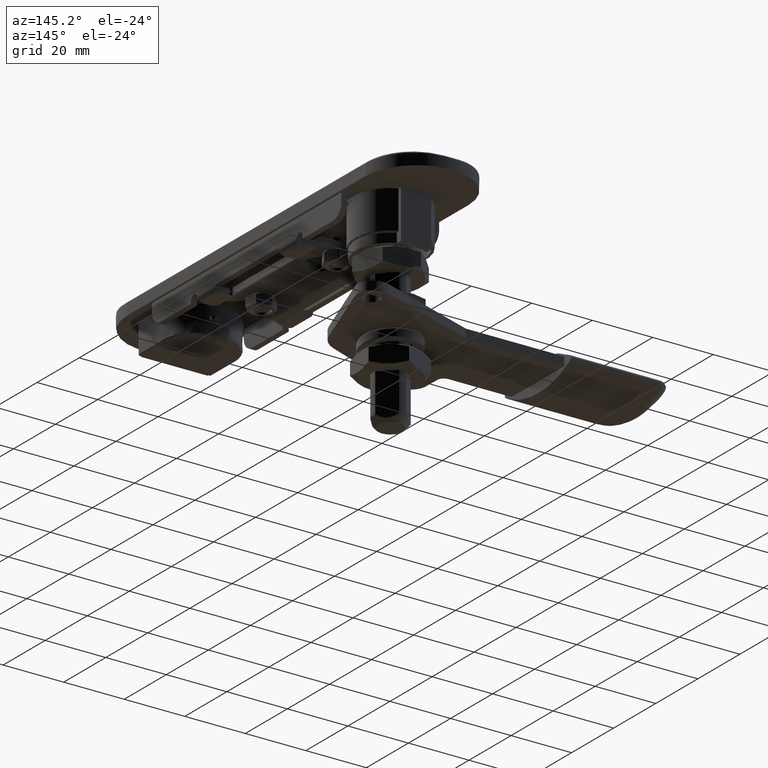
[diagram: clean part render]
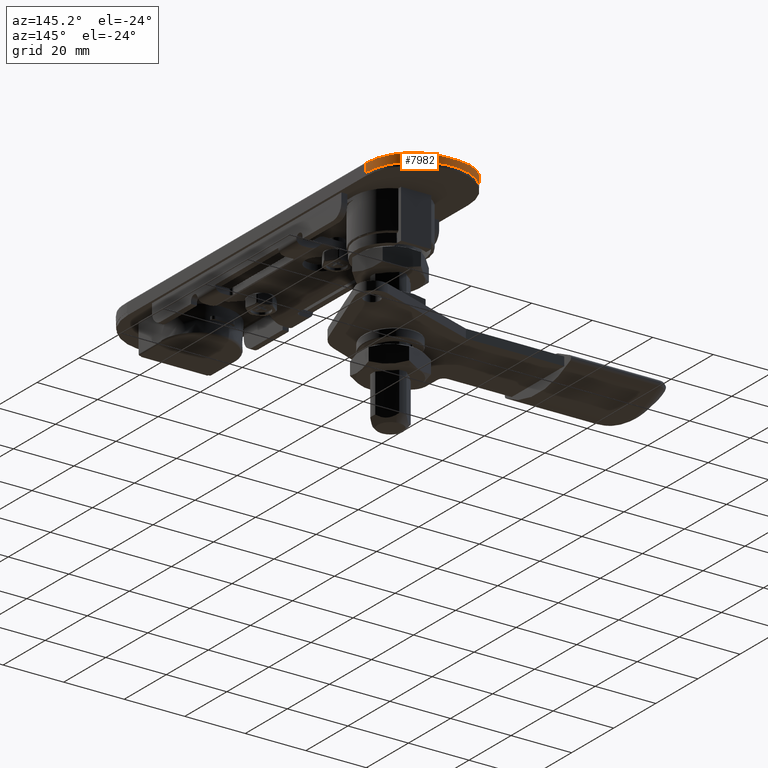
[diagram: same view with one face highlighted and labeled with its STEP entity id]
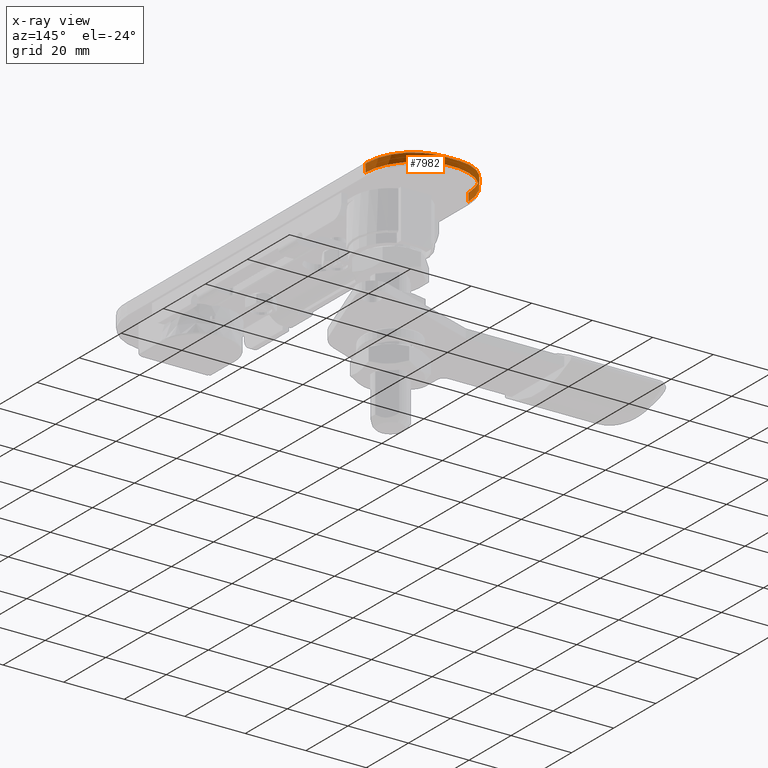
[diagram: x-ray of the same camera — body ghosted, the highlighted face saturated]
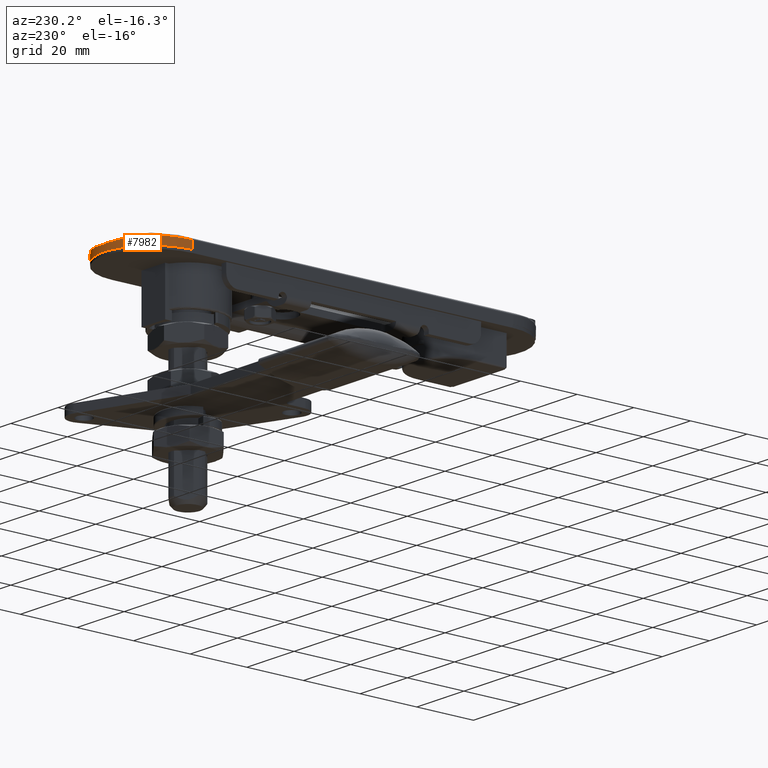
[diagram: same view with one face highlighted and labeled with its STEP entity id]
A machine part, auxiliary view. The second image highlights one B-rep face of the part: STEP entity #7982.
The next image is the same camera in x-ray: the body ghosted, the highlighted face saturated — about 0% of this face is hidden behind the body in this view.
A second angle (auxiliary view) of the same face is appended — the face is thin or edge-on in the first view.
In plain terms, the highlighted cylindrical surface (partial cylindrical patch) has radius 17 mm, axis along (0, 0, 1).
Its self-contained STEP definition (entity closure, byte-faithful):
#284=CYLINDRICAL_SURFACE('',#8509,17.);
#445=B_SPLINE_CURVE_WITH_KNOTS('',3,(#11934,#11935,#11936,#11937),
 .UNSPECIFIED.,.F.,.F.,(4,4),(-0.100076611545021,-9.01788158025764E-16),
 .UNSPECIFIED.);
#447=B_SPLINE_CURVE_WITH_KNOTS('',3,(#11975,#11976,#11977,#11978,#11979,
#11980),.UNSPECIFIED.,.F.,.F.,(4,1,1,4),(-2.24226266859589,-1.28129295348337,
-0.640646476741683,-8.31030233735599E-16),.UNSPECIFIED.);
#449=B_SPLINE_CURVE_WITH_KNOTS('',3,(#12010,#12011,#12012,#12013),
 .UNSPECIFIED.,.F.,.F.,(4,4),(-0.502447549557416,-4.30586264964132E-15),
 .UNSPECIFIED.);
#451=B_SPLINE_CURVE_WITH_KNOTS('',3,(#12051,#12052,#12053,#12054,#12055,
#12056),.UNSPECIFIED.,.F.,.F.,(4,1,1,4),(-2.24224858661324,-1.60160613329517,
-0.960963679977102,-1.30393595198205E-15),.UNSPECIFIED.);
#453=B_SPLINE_CURVE_WITH_KNOTS('',3,(#12086,#12087,#12088,#12089),
 .UNSPECIFIED.,.F.,.F.,(4,4),(-0.100076612241041,0.),.UNSPECIFIED.);
#707=CIRCLE('',#8510,17.);
#1095=FACE_OUTER_BOUND('',#1590,.T.);
#1590=EDGE_LOOP('',(#5470,#5471,#5472,#5473,#5474,#5475,#5476,#5477));
#2166=LINE('',#12180,#2776);
#2169=LINE('',#12186,#2779);
#2776=VECTOR('',#9475,2.69277599463048);
#2779=VECTOR('',#9480,2.69277599463051);
#3397=VERTEX_POINT('',#11907);
#3399=VERTEX_POINT('',#11932);
#3401=VERTEX_POINT('',#11973);
#3403=VERTEX_POINT('',#12008);
#3405=VERTEX_POINT('',#12049);
#3407=VERTEX_POINT('',#12084);
#3414=VERTEX_POINT('',#12179);
#3416=VERTEX_POINT('',#12185);
#4198=EDGE_CURVE('',#3399,#3397,#445,.T.);
#4201=EDGE_CURVE('',#3401,#3399,#447,.T.);
#4204=EDGE_CURVE('',#3403,#3401,#449,.T.);
#4207=EDGE_CURVE('',#3405,#3403,#451,.T.);
#4210=EDGE_CURVE('',#3407,#3405,#453,.T.);
#4221=EDGE_CURVE('',#3414,#3397,#2166,.T.);
#4224=EDGE_CURVE('',#3416,#3407,#2169,.T.);
#4225=EDGE_CURVE('',#3416,#3414,#707,.T.);
#5470=ORIENTED_EDGE('',*,*,#4198,.F.);
#5471=ORIENTED_EDGE('',*,*,#4201,.F.);
#5472=ORIENTED_EDGE('',*,*,#4204,.F.);
#5473=ORIENTED_EDGE('',*,*,#4207,.F.);
#5474=ORIENTED_EDGE('',*,*,#4210,.F.);
#5475=ORIENTED_EDGE('',*,*,#4224,.F.);
#5476=ORIENTED_EDGE('',*,*,#4225,.T.);
#5477=ORIENTED_EDGE('',*,*,#4221,.T.);
#7982=ADVANCED_FACE('',(#1095),#284,.T.);
#8509=AXIS2_PLACEMENT_3D('',#12184,#9478,#9479);
#8510=AXIS2_PLACEMENT_3D('',#12187,#9481,#9482);
#9475=DIRECTION('',(0.,0.,1.));
#9478=DIRECTION('center_axis',(0.,0.,1.));
#9479=DIRECTION('ref_axis',(1.,5.2245789394125E-16,0.));
#9480=DIRECTION('',(0.,0.,1.));
#9481=DIRECTION('center_axis',(0.,0.,1.));
#9482=DIRECTION('ref_axis',(1.,5.2245789394125E-16,0.));
#11907=CARTESIAN_POINT('',(-17.,56.65,2.69277599463048));
#11932=CARTESIAN_POINT('',(-16.9687499735764,57.680303030303,2.7079325618715));
#11934=CARTESIAN_POINT('Ctrl Pts',(-16.9687499735764,57.680303030303,2.7079325618715));
#11935=CARTESIAN_POINT('Ctrl Pts',(-16.989570602006,57.3373941697795,2.69784803573505));
#11936=CARTESIAN_POINT('Ctrl Pts',(-17.,56.993697453791,2.69277599463048));
#11937=CARTESIAN_POINT('Ctrl Pts',(-17.,56.65,2.69277599463048));
#11973=CARTESIAN_POINT('',(-2.57575757575757,73.4537338978849,2.29713095015357));
#11975=CARTESIAN_POINT('Ctrl Pts',(-2.57575757575757,73.4537338978849,2.29713095015357));
#11976=CARTESIAN_POINT('Ctrl Pts',(-5.82811537646215,72.9551967694618,2.54574133772796));
#11977=CARTESIAN_POINT('Ctrl Pts',(-11.001977333213,70.5002915013601,2.81815959750421));
#11978=CARTESIAN_POINT('Ctrl Pts',(-15.7047706749182,64.2106450952923,2.86181879245691));
#11979=CARTESIAN_POINT('Ctrl Pts',(-16.8354654624298,59.8754548239772,2.77248926537282));
#11980=CARTESIAN_POINT('Ctrl Pts',(-16.9687499735764,57.680303030303,2.7079325618715));
#12008=CARTESIAN_POINT('',(2.57575757575762,73.4537338978849,2.29713095015358));
#12010=CARTESIAN_POINT('Ctrl Pts',(2.57575757575762,73.4537338978849,2.29713095015358));
#12011=CARTESIAN_POINT('Ctrl Pts',(0.875246954508127,73.71439638766,2.16714383602621));
#12012=CARTESIAN_POINT('Ctrl Pts',(-0.875246954508073,73.71439638766,2.16714383602621));
#12013=CARTESIAN_POINT('Ctrl Pts',(-2.57575757575757,73.4537338978849,2.29713095015357));
#12049=CARTESIAN_POINT('',(16.9687499735764,57.680303030303,2.70793256187153));
#12051=CARTESIAN_POINT('Ctrl Pts',(16.9687499735764,57.680303030303,2.70793256187153));
#12052=CARTESIAN_POINT('Ctrl Pts',(16.8354662994905,59.8754410378629,2.77248885994025));
#12053=CARTESIAN_POINT('Ctrl Pts',(15.704836362388,64.2104187894592,2.86181345978372));
#12054=CARTESIAN_POINT('Ctrl Pts',(11.0022243987517,70.5001337525877,2.81816988923876));
#12055=CARTESIAN_POINT('Ctrl Pts',(5.82809495082399,72.9551999004023,2.5457397763912));
#12056=CARTESIAN_POINT('Ctrl Pts',(2.57575757575761,73.4537338978849,2.29713095015358));
#12084=CARTESIAN_POINT('',(17.,56.65,2.69277599463051));
#12086=CARTESIAN_POINT('Ctrl Pts',(17.,56.65,2.69277599463051));
#12087=CARTESIAN_POINT('Ctrl Pts',(17.,56.9936974561813,2.69277599463051));
#12088=CARTESIAN_POINT('Ctrl Pts',(16.9895706021508,57.3373941673946,2.69784803566494));
#12089=CARTESIAN_POINT('Ctrl Pts',(16.9687499735764,57.680303030303,2.70793256187153));
#12179=CARTESIAN_POINT('',(-17.,56.65,0.));
#12180=CARTESIAN_POINT('',(-17.,56.65,0.));
#12184=CARTESIAN_POINT('Origin',(-2.7750496468679E-14,56.65,0.));
#12185=CARTESIAN_POINT('',(17.,56.65,0.));
#12186=CARTESIAN_POINT('',(17.,56.65,0.));
#12187=CARTESIAN_POINT('Origin',(-2.7750496468679E-14,56.65,0.));